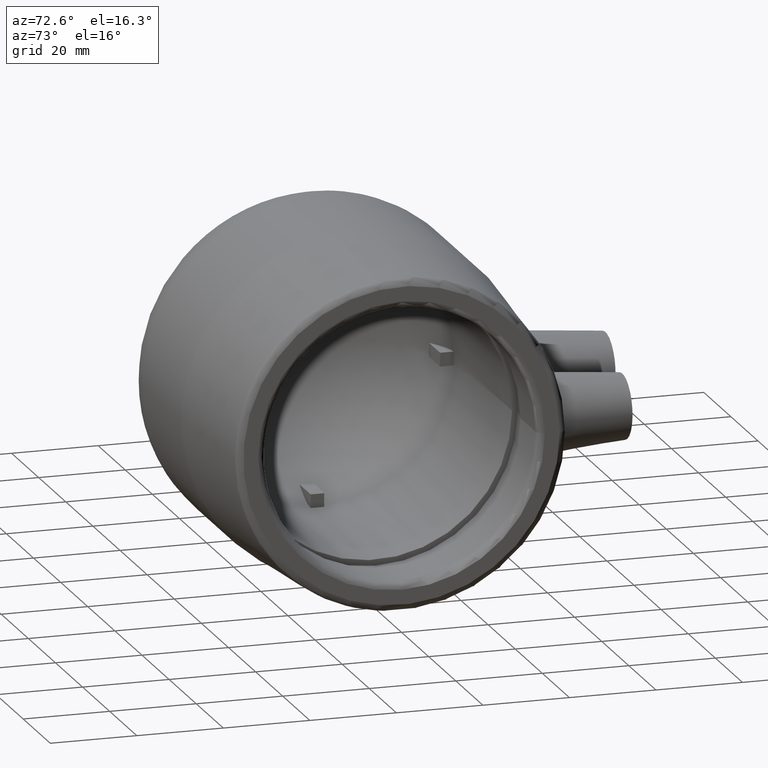
[diagram: clean part render]
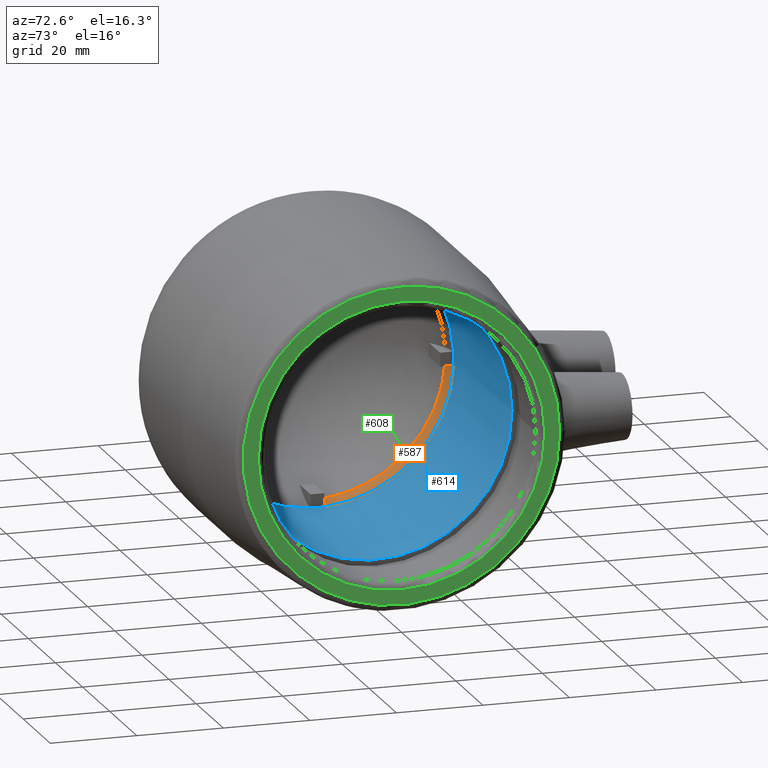
[diagram: same view with three faces highlighted in distinct colors, each labeled with its STEP entity id]
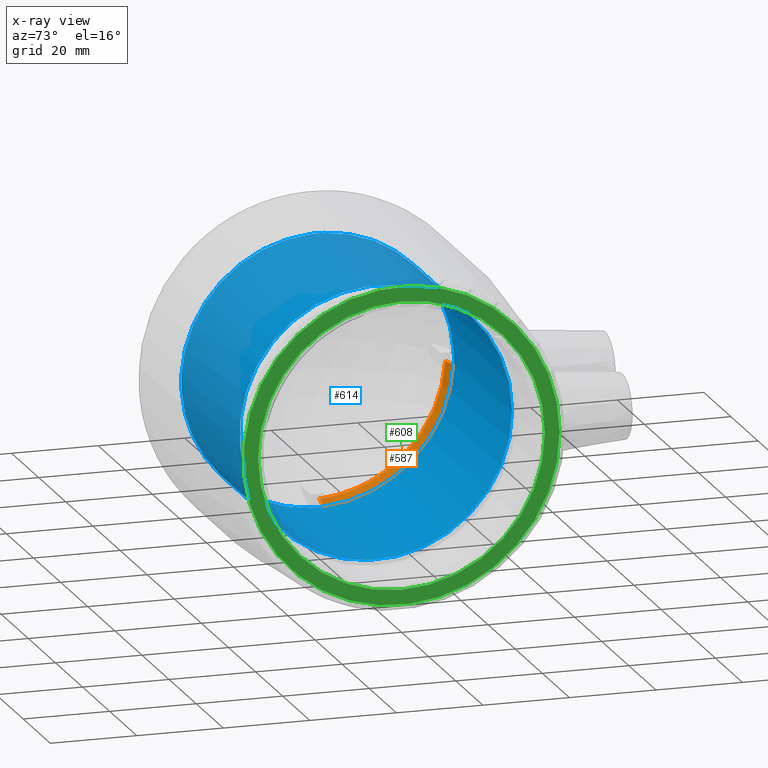
[diagram: x-ray of the same camera — body ghosted, the three highlighted faces saturated]
A machine part, auxiliary view with three faces highlighted in distinct colors.
The next image is the same camera in x-ray (body ghosted, the three faces saturated) — at least one of them is partly hidden behind the body in this view.
Their STEP definitions:

[orange] entity #587 — the highlighted toroidal blend (fillet) surface has major radius 22 mm and minor (blend) radius 9.5 mm.
#50=TOROIDAL_SURFACE('',#656,22.,9.5);
#62=B_SPLINE_CURVE_WITH_KNOTS('',3,(#982,#983,#984,#985,#986,#987,#988,
#989),.UNSPECIFIED.,.F.,.F.,(4,2,2,4),(0.,0.175774802605771,0.351549605211543,
0.363680377737833),.UNSPECIFIED.);
#63=B_SPLINE_CURVE_WITH_KNOTS('',3,(#1002,#1003,#1004,#1005,#1006,#1007,
#1008,#1009),.UNSPECIFIED.,.F.,.F.,(4,2,2,4),(-0.363680377737832,-0.351549605211543,
-0.175774802605771,0.),.UNSPECIFIED.);
#125=FACE_OUTER_BOUND('',#170,.T.);
#170=EDGE_LOOP('',(#467,#468,#469,#470));
#241=CIRCLE('',#652,30.7302844796543);
#244=CIRCLE('',#657,31.5);
#277=VERTEX_POINT('',#955);
#284=VERTEX_POINT('',#981);
#286=VERTEX_POINT('',#993);
#289=VERTEX_POINT('',#1001);
#344=EDGE_CURVE('',#277,#284,#62,.T.);
#350=EDGE_CURVE('',#289,#286,#63,.T.);
#362=EDGE_CURVE('',#289,#284,#241,.T.);
#366=EDGE_CURVE('',#286,#277,#244,.T.);
#467=ORIENTED_EDGE('',*,*,#344,.T.);
#468=ORIENTED_EDGE('',*,*,#362,.F.);
#469=ORIENTED_EDGE('',*,*,#350,.T.);
#470=ORIENTED_EDGE('',*,*,#366,.T.);
#587=ADVANCED_FACE('',(#125),#50,.F.);
#652=AXIS2_PLACEMENT_3D('',#1038,#793,#794);
#656=AXIS2_PLACEMENT_3D('',#1051,#801,#802);
#657=AXIS2_PLACEMENT_3D('',#1052,#803,#804);
#793=DIRECTION('center_axis',(1.,2.94252051263958E-17,0.));
#794=DIRECTION('ref_axis',(0.,0.,-1.));
#801=DIRECTION('center_axis',(1.,2.94252051263958E-17,0.));
#802=DIRECTION('ref_axis',(0.,0.,-1.));
#803=DIRECTION('center_axis',(1.,2.94252051263958E-17,0.));
#804=DIRECTION('ref_axis',(0.,0.,-1.));
#955=CARTESIAN_POINT('',(-62.,31.4606003598151,-1.575));
#981=CARTESIAN_POINT('',(-65.7459488656824,30.6898966958262,-1.575));
#982=CARTESIAN_POINT('Ctrl Pts',(-62.,31.4606003598151,-1.575));
#983=CARTESIAN_POINT('Ctrl Pts',(-62.5859160086859,31.4606003598151,-1.575));
#984=CARTESIAN_POINT('Ctrl Pts',(-63.2258049807318,31.402748566707,-1.575));
#985=CARTESIAN_POINT('Ctrl Pts',(-64.4789626716985,31.1533005625782,-1.575));
#986=CARTESIAN_POINT('Ctrl Pts',(-65.0922316119794,30.96170546361,-1.575));
#987=CARTESIAN_POINT('Ctrl Pts',(-65.6708487693632,30.7218744621851,-1.575));
#988=CARTESIAN_POINT('Ctrl Pts',(-65.7083415904558,30.7060542816599,-1.575));
#989=CARTESIAN_POINT('Ctrl Pts',(-65.7459488656824,30.6898966958262,-1.575));
#993=CARTESIAN_POINT('',(-62.,1.575,-31.4606003598151));
#1001=CARTESIAN_POINT('',(-65.7459488656824,1.575,-30.6898966958262));
#1002=CARTESIAN_POINT('Ctrl Pts',(-65.7459488656824,1.575,-30.6898966958262));
#1003=CARTESIAN_POINT('Ctrl Pts',(-65.7083415904558,1.575,-30.7060542816599));
#1004=CARTESIAN_POINT('Ctrl Pts',(-65.6708487693632,1.575,-30.7218744621851));
#1005=CARTESIAN_POINT('Ctrl Pts',(-65.0922316119794,1.575,-30.96170546361));
#1006=CARTESIAN_POINT('Ctrl Pts',(-64.4789626716985,1.575,-31.1533005625782));
#1007=CARTESIAN_POINT('Ctrl Pts',(-63.2258049807318,1.575,-31.402748566707));
#1008=CARTESIAN_POINT('Ctrl Pts',(-62.5859160086859,1.575,-31.4606003598151));
#1009=CARTESIAN_POINT('Ctrl Pts',(-62.,1.575,-31.4606003598151));
#1038=CARTESIAN_POINT('Origin',(-65.7459488656824,-1.93458803160224E-15,
0.));
#1051=CARTESIAN_POINT('Origin',(-62.,-1.82436271783654E-15,0.));
#1052=CARTESIAN_POINT('Origin',(-62.,-1.82436271783654E-15,0.));

[blue] entity #614 — the highlighted cylindrical surface (bore or boss wall) has radius 31.5 mm, axis along (1, 0, 0).
#41=FACE_BOUND('',#220,.T.);
#48=CYLINDRICAL_SURFACE('',#706,31.5);
#152=FACE_OUTER_BOUND('',#219,.T.);
#219=EDGE_LOOP('',(#537,#538,#539,#540,#541,#542,#543,#544));
#220=EDGE_LOOP('',(#545));
#224=CIRCLE('',#623,31.5);
#228=CIRCLE('',#631,31.5);
#232=CIRCLE('',#639,31.5);
#243=CIRCLE('',#655,31.5);
#244=CIRCLE('',#657,31.5);
#245=CIRCLE('',#659,31.5);
#246=CIRCLE('',#661,31.5);
#247=CIRCLE('',#664,31.5);
#266=CIRCLE('',#705,31.5);
#269=VERTEX_POINT('',#918);
#270=VERTEX_POINT('',#919);
#277=VERTEX_POINT('',#955);
#278=VERTEX_POINT('',#956);
#285=VERTEX_POINT('',#992);
#286=VERTEX_POINT('',#993);
#297=VERTEX_POINT('',#1041);
#298=VERTEX_POINT('',#1054);
#321=VERTEX_POINT('',#1204);
#324=EDGE_CURVE('',#269,#270,#224,.T.);
#335=EDGE_CURVE('',#277,#278,#228,.T.);
#346=EDGE_CURVE('',#285,#286,#232,.T.);
#365=EDGE_CURVE('',#297,#285,#243,.T.);
#366=EDGE_CURVE('',#286,#277,#244,.T.);
#367=EDGE_CURVE('',#270,#298,#245,.T.);
#369=EDGE_CURVE('',#278,#269,#246,.T.);
#372=EDGE_CURVE('',#298,#297,#247,.T.);
#396=EDGE_CURVE('',#321,#321,#266,.T.);
#537=ORIENTED_EDGE('',*,*,#365,.F.);
#538=ORIENTED_EDGE('',*,*,#372,.F.);
#539=ORIENTED_EDGE('',*,*,#367,.F.);
#540=ORIENTED_EDGE('',*,*,#324,.F.);
#541=ORIENTED_EDGE('',*,*,#369,.F.);
#542=ORIENTED_EDGE('',*,*,#335,.F.);
#543=ORIENTED_EDGE('',*,*,#366,.F.);
#544=ORIENTED_EDGE('',*,*,#346,.F.);
#545=ORIENTED_EDGE('',*,*,#396,.T.);
#614=ADVANCED_FACE('',(#152,#41),#48,.F.);
#623=AXIS2_PLACEMENT_3D('',#920,#720,#721);
#631=AXIS2_PLACEMENT_3D('',#957,#741,#742);
#639=AXIS2_PLACEMENT_3D('',#994,#762,#763);
#655=AXIS2_PLACEMENT_3D('',#1050,#799,#800);
#657=AXIS2_PLACEMENT_3D('',#1052,#803,#804);
#659=AXIS2_PLACEMENT_3D('',#1055,#807,#808);
#661=AXIS2_PLACEMENT_3D('',#1065,#811,#812);
#664=AXIS2_PLACEMENT_3D('',#1071,#819,#820);
#705=AXIS2_PLACEMENT_3D('',#1205,#904,#905);
#706=AXIS2_PLACEMENT_3D('',#1206,#906,#907);
#720=DIRECTION('center_axis',(1.,2.94252051263958E-17,0.));
#721=DIRECTION('ref_axis',(0.,0.,-1.));
#741=DIRECTION('center_axis',(1.,2.94252051263958E-17,0.));
#742=DIRECTION('ref_axis',(0.,0.,-1.));
#762=DIRECTION('center_axis',(1.,2.94252051263958E-17,0.));
#763=DIRECTION('ref_axis',(0.,0.,-1.));
#799=DIRECTION('center_axis',(1.,2.94252051263958E-17,0.));
#800=DIRECTION('ref_axis',(0.,0.,-1.));
#803=DIRECTION('center_axis',(1.,2.94252051263958E-17,0.));
#804=DIRECTION('ref_axis',(0.,0.,-1.));
#807=DIRECTION('center_axis',(1.,2.94252051263958E-17,0.));
#808=DIRECTION('ref_axis',(0.,0.,-1.));
#811=DIRECTION('center_axis',(1.,2.94252051263958E-17,0.));
#812=DIRECTION('ref_axis',(0.,0.,-1.));
#819=DIRECTION('center_axis',(1.,2.94252051263958E-17,0.));
#820=DIRECTION('ref_axis',(0.,0.,-1.));
#904=DIRECTION('center_axis',(1.,2.94252051263958E-17,0.));
#905=DIRECTION('ref_axis',(0.,0.,-1.));
#906=DIRECTION('center_axis',(1.,2.94252051263958E-17,0.));
#907=DIRECTION('ref_axis',(0.,1.,0.));
#918=CARTESIAN_POINT('',(-62.,1.57500000000001,31.4606003598151));
#919=CARTESIAN_POINT('',(-62.,-1.575,31.4606003598151));
#920=CARTESIAN_POINT('Origin',(-62.,-1.82436271783654E-15,0.));
#955=CARTESIAN_POINT('',(-62.,31.4606003598151,-1.575));
#956=CARTESIAN_POINT('',(-62.,31.4606003598151,1.575));
#957=CARTESIAN_POINT('Origin',(-62.,-1.82436271783654E-15,0.));
#992=CARTESIAN_POINT('',(-62.,-1.575,-31.4606003598151));
#993=CARTESIAN_POINT('',(-62.,1.575,-31.4606003598151));
#994=CARTESIAN_POINT('Origin',(-62.,-1.82436271783654E-15,0.));
#1041=CARTESIAN_POINT('',(-62.,-31.4606003598151,-1.575));
#1050=CARTESIAN_POINT('Origin',(-62.,-1.82436271783654E-15,0.));
#1052=CARTESIAN_POINT('Origin',(-62.,-1.82436271783654E-15,0.));
#1054=CARTESIAN_POINT('',(-62.,-31.4606003598151,1.575));
#1055=CARTESIAN_POINT('Origin',(-62.,-1.82436271783654E-15,0.));
#1065=CARTESIAN_POINT('Origin',(-62.,-1.82436271783654E-15,0.));
#1071=CARTESIAN_POINT('Origin',(-62.,-1.82436271783654E-15,0.));
#1204=CARTESIAN_POINT('',(-19.,31.5,0.));
#1205=CARTESIAN_POINT('Origin',(-19.,-5.59078897401521E-16,0.));
#1206=CARTESIAN_POINT('Origin',(-40.5,-1.19172080761903E-15,0.));

[green] entity #608 — the highlighted planar face has unit normal (1, 0, 0).
#35=FACE_BOUND('',#208,.T.);
#146=FACE_OUTER_BOUND('',#207,.T.);
#207=EDGE_LOOP('',(#525));
#208=EDGE_LOOP('',(#526));
#260=CIRCLE('',#693,33.12);
#262=CIRCLE('',#696,36.564073469893);
#315=VERTEX_POINT('',#1186);
#317=VERTEX_POINT('',#1191);
#390=EDGE_CURVE('',#315,#315,#260,.T.);
#392=EDGE_CURVE('',#317,#317,#262,.T.);
#525=ORIENTED_EDGE('',*,*,#392,.F.);
#526=ORIENTED_EDGE('',*,*,#390,.F.);
#569=PLANE('',#695);
#608=ADVANCED_FACE('',(#146,#35),#569,.T.);
#693=AXIS2_PLACEMENT_3D('',#1187,#880,#881);
#695=AXIS2_PLACEMENT_3D('',#1190,#884,#885);
#696=AXIS2_PLACEMENT_3D('',#1192,#886,#887);
#880=DIRECTION('center_axis',(1.,2.94252051263958E-17,0.));
#881=DIRECTION('ref_axis',(2.94252051263958E-17,-1.,1.83697019872103E-16));
#884=DIRECTION('center_axis',(1.,2.94252051263958E-17,0.));
#885=DIRECTION('ref_axis',(0.,0.,-1.));
#886=DIRECTION('center_axis',(-1.,-2.94252051263958E-17,0.));
#887=DIRECTION('ref_axis',(2.94252051263958E-17,-1.,0.));
#1186=CARTESIAN_POINT('',(-1.41895525317363E-16,33.12,-2.02801509938802E-15));
#1187=CARTESIAN_POINT('Origin',(8.32667268468867E-16,-1.30963236218332E-31,
0.));
#1190=CARTESIAN_POINT('Origin',(1.04304731012784E-20,31.5,0.));
#1191=CARTESIAN_POINT('',(-2.43238093639343E-16,36.564073469893,-4.47780755386931E-15));
#1192=CARTESIAN_POINT('Origin',(8.32667268468867E-16,5.39260384428426E-32,
0.));